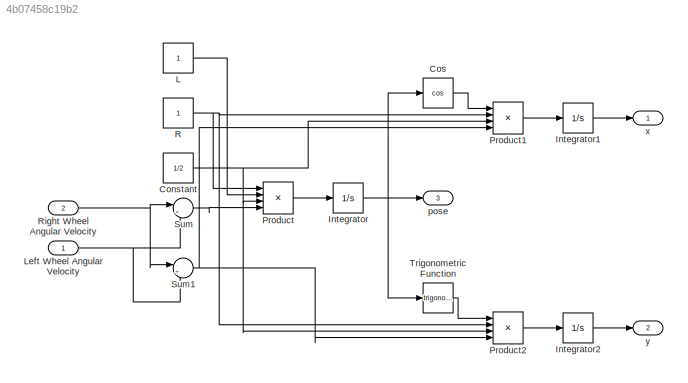
MODEL slx_4b07458c19b2
KIND model
CONFIG AbsTol = auto
CONFIG EnableMultiTasking = off
CONFIG FixedStep = auto
CONFIG MaxStep = auto
CONFIG MinStep = auto
CONFIG RelTol = 1e-3
CONFIG SampleTimeConstraint = Unconstrained
CONFIG SolverName = FixedStepAuto
CONFIG StartTime = 0.0
CONFIG StopTime = 10.0
BLOCK [Constant] Constant
  Value = 1/2
BLOCK [Trigonometry] Cos
  Operator = cos
BLOCK [Integrator] Integrator
BLOCK [Integrator] Integrator1
BLOCK [Integrator] Integrator2
BLOCK [Constant] L
  Description = Centriod to wheel length
BLOCK [Inport] Left Wheel Angular Velocity
BLOCK [Product] Product
  Inputs = 4
BLOCK [Product] Product1
  Inputs = 4
BLOCK [Product] Product2
  Inputs = 4
BLOCK [Constant] R
  Description = The radius of the wheels
BLOCK [Inport] Right Wheel Angular Velocity
  Port = 2
BLOCK [Sum] Sum
  Inputs = |+-
BLOCK [Sum] Sum1
  Inputs = |++
BLOCK [Trigonometry] Trigonometric Function
BLOCK [Outport] pose
  Port = 3
BLOCK [Outport] x
BLOCK [Outport] y
  Port = 2
NET Constant:1 -> Product1:3, Product2:3, Product:3
LINE Cos:1 -> Product1:1
LINE Integrator1:1 -> x:1
LINE Integrator2:1 -> y:1
NET Integrator:1 -> Cos:1, Trigonometric Function:1, pose:1
LINE L:1 -> Product:2
NET Left Wheel Angular Velocity:1 -> Sum1:2, Sum:2
LINE Product1:1 -> Integrator1:1
LINE Product2:1 -> Integrator2:1
LINE Product:1 -> Integrator:1
NET R:1 -> Product1:2, Product2:2, Product:1
NET Right Wheel Angular Velocity:1 -> Sum1:1, Sum:1
NET Sum1:1 -> Product1:4, Product2:4
LINE Sum:1 -> Product:4
LINE Trigonometric Function:1 -> Product2:1
note: NET lines group one-source signal fan-out (src -> all destinations, sorted); 1:1 wires keep LINE
